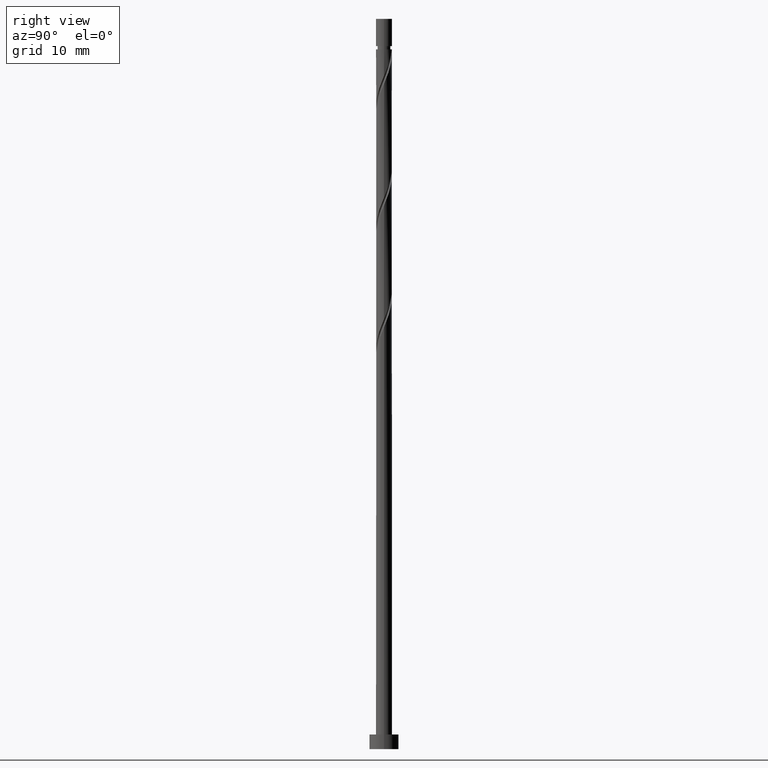
[diagram: clean part render]
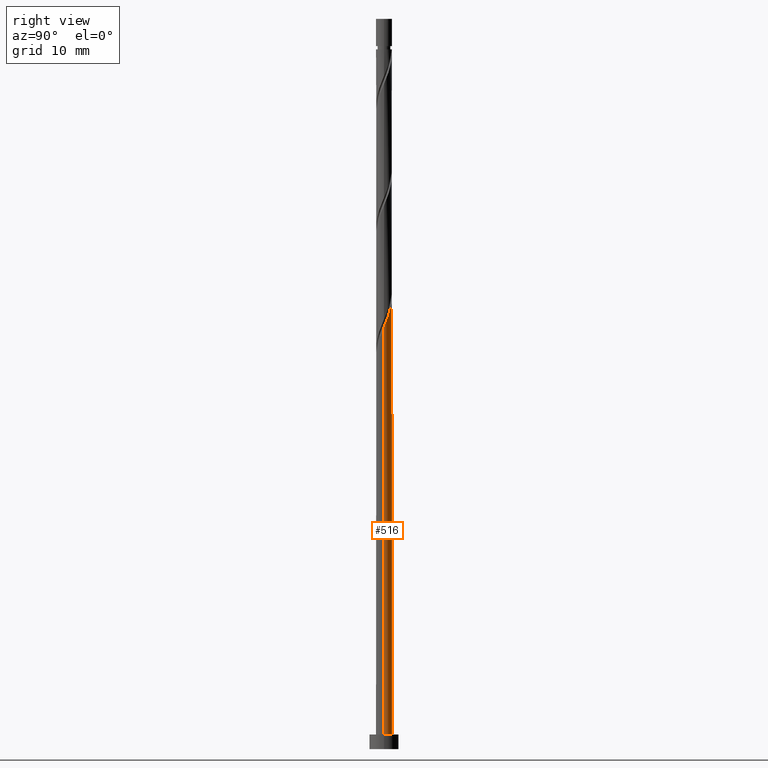
[diagram: same view with one face highlighted and labeled with its STEP entity id]
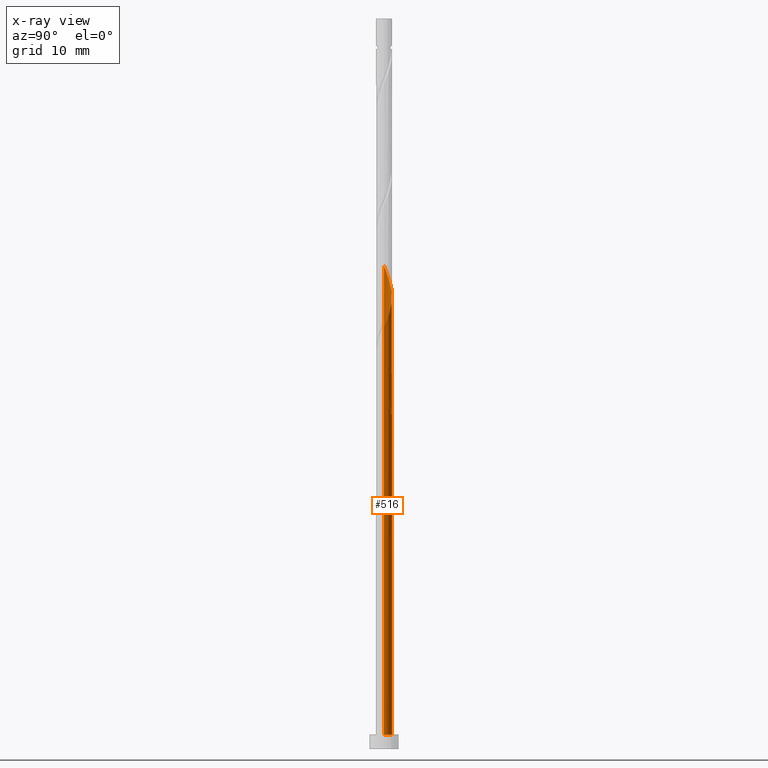
[diagram: x-ray of the same camera — body ghosted, the highlighted face saturated]
A machine part, right view. The second image highlights one B-rep face of the part: STEP entity #516.
The next image is the same camera in x-ray: the body ghosted, the highlighted face saturated — about 0% of this face is hidden behind the body in this view.
In plain terms, the highlighted cylindrical surface (edge-blend (fillet) strip) has radius 1.1 mm, axis along (-0, -0, -1).
Its self-contained STEP definition (entity closure, byte-faithful):
#25 = CARTESIAN_POINT ( 'NONE',  ( 1.100000000000001643, -7.245398775243440088E-16, 57.78930650279280457 ) ) ;
#46 = CARTESIAN_POINT ( 'NONE',  ( 0.6956601188265308933, 0.8738863519167893168, 60.17201324296676290 ) ) ;
#52 = EDGE_CURVE ( 'NONE', #1416, #1311, #73, .T. ) ;
#59 = EDGE_CURVE ( 'NONE', #1180, #1101, #1064, .T. ) ;
#65 = DIRECTION ( 'NONE',  ( -0.000000000000000000, -0.000000000000000000, -1.000000000000000000 ) ) ;
#73 = LINE ( 'NONE', #871, #1046 ) ;
#84 = ORIENTED_EDGE ( 'NONE', *, *, #52, .F. ) ;
#91 = DIRECTION ( 'NONE',  ( -0.000000000000000000, -0.000000000000000000, -1.000000000000000000 ) ) ;
#95 = CARTESIAN_POINT ( 'NONE',  ( -0.5252400318649718125, 0.9665003408827577136, 47.67201324296674159 ) ) ;
#111 = CARTESIAN_POINT ( 'NONE',  ( 1.100000000000000089, 1.347111479062088503E-16, 2.000000000000000000 ) ) ;
#113 = FACE_OUTER_BOUND ( 'NONE', #322, .T. ) ;
#119 = EDGE_CURVE ( 'NONE', #628, #1416, #1285, .T. ) ;
#152 = EDGE_CURVE ( 'NONE', #628, #900, #1069, .T. ) ;
#165 = VECTOR ( 'NONE', #329, 1000.000000000000000 ) ;
#167 = EDGE_CURVE ( 'NONE', #1077, #1311, #582, .T. ) ;
#176 = CARTESIAN_POINT ( 'NONE',  ( 1.099633863903274111, 0.02837895976176521215, 57.85719842815194625 ) ) ;
#178 = ORIENTED_EDGE ( 'NONE', *, *, #119, .F. ) ;
#180 = CARTESIAN_POINT ( 'NONE',  ( 0.5252400318649721456, 0.9665003408827576026, 60.63497620592971060 ) ) ;
#200 = CARTESIAN_POINT ( 'NONE',  ( -1.100000000000002309, 3.482310449497200798E-13, 50.51768294610282339 ) ) ;
#208 = DIRECTION ( 'NONE',  ( -1.000000000000000000, 0.000000000000000000, 0.000000000000000000 ) ) ;
#211 = CARTESIAN_POINT ( 'NONE',  ( -1.100000000000000089, 0.000000000000000000, 100.0000000000000000 ) ) ;
#213 = CARTESIAN_POINT ( 'NONE',  ( -0.3548199449034129538, 1.059114329848726666, 47.20905028000379389 ) ) ;
#228 = CARTESIAN_POINT ( 'NONE',  ( 0.000000000000000000, 0.000000000000000000, 100.0000000000000000 ) ) ;
#278 = CARTESIAN_POINT ( 'NONE',  ( 1.094629887612834862, 0.2222740788686123903, 58.32016139111491526 ) ) ;
#283 = CARTESIAN_POINT ( 'NONE',  ( -0.2188972361634563824, 1.078000000000001624, 62.48682805778157956 ) ) ;
#287 = CARTESIAN_POINT ( 'NONE',  ( 0.9525934155692655780, 0.5832547827547219788, 59.24608731704083198 ) ) ;
#292 = CARTESIAN_POINT ( 'NONE',  ( -1.043024003361354479, 0.3494294326642456427, 65.26460583555935102 ) ) ;
#309 = CARTESIAN_POINT ( 'NONE',  ( -1.043024003361354479, 0.3494294326642456427, 48.59793916889268672 ) ) ;
#316 = CARTESIAN_POINT ( 'NONE',  ( -1.100000000000002309, 3.482310449497200798E-13, 50.51768294610282339 ) ) ;
#318 = CARTESIAN_POINT ( 'NONE',  ( -0.2188972361634564379, 1.078000000000001402, 45.82016139111490105 ) ) ;
#322 = EDGE_LOOP ( 'NONE', ( #1430, #1366, #1112, #84, #178, #967, #421, #738 ) ) ;
#325 = CARTESIAN_POINT ( 'NONE',  ( -1.023611651591050054, 0.4027644308116675731, 49.52386509481858212 ) ) ;
#329 = DIRECTION ( 'NONE',  ( -0.000000000000000000, -0.000000000000000000, -1.000000000000000000 ) ) ;
#351 = CYLINDRICAL_SURFACE ( 'NONE', #1003, 1.100000000000000089 ) ;
#395 = CARTESIAN_POINT ( 'NONE',  ( 0.1630015969718417168, 1.087855909293428569, 61.56090213185563442 ) ) ;
#418 = CARTESIAN_POINT ( 'NONE',  ( -0.02881675095973110223, 1.116597488738132027, 62.02386509481861054 ) ) ;
#420 = AXIS2_PLACEMENT_3D ( 'NONE', #1020, #917, #906 ) ;
#421 = ORIENTED_EDGE ( 'NONE', *, *, #464, .F. ) ;
#423 = CARTESIAN_POINT ( 'NONE',  ( -0.1630015969718409952, 1.087855909293429457, 46.74608731704081777 ) ) ;
#432 = CARTESIAN_POINT ( 'NONE',  ( -0.9814101665289961529, 0.5333427059834092709, 48.13497620592972481 ) ) ;
#447 = CARTESIAN_POINT ( 'NONE',  ( -1.100000000000001643, 0.1793598090025021463, 49.02605365709386120 ) ) ;
#464 = EDGE_CURVE ( 'NONE', #973, #900, #555, .T. ) ;
#510 = CARTESIAN_POINT ( 'NONE',  ( 1.100000000000001421, 0.01419184176522167960, 57.82332387672514784 ) ) ;
#516 = ADVANCED_FACE ( 'NONE', ( #113 ), #351, .T. ) ;
#536 = CARTESIAN_POINT ( 'NONE',  ( -1.094629887612834862, 0.2222740788686127511, 49.98682805778156535 ) ) ;
#551 = CARTESIAN_POINT ( 'NONE',  ( 0.02881675095973112652, 1.116597488738132249, 46.28312435407786296 ) ) ;
#555 =( BOUNDED_CURVE ( )  B_SPLINE_CURVE ( 2, ( #316, #659, #1445, #536, #325, #1124, #786, #997, #95, #213, #423, #551, #1018 ),
 .UNSPECIFIED., .F., .T. ) 
 B_SPLINE_CURVE_WITH_KNOTS ( ( 3, 2, 2, 2, 2, 2, 3 ),
 ( 0.9295248053855417192, 0.9305555555555555802, 0.9444444444444444198, 0.9583333333333333703, 0.9722222222222222099, 0.9861111111111111605, 1.000000000000000000 ),
 .UNSPECIFIED. ) 
 CURVE ( )  GEOMETRIC_REPRESENTATION_ITEM ( )  RATIONAL_B_SPLINE_CURVE ( ( 0.9071930855141490113, 0.9080659294509878521, 0.9090909090909153889, 0.8952797754656497409, 0.9090909090909153889, 0.8952797754656497409, 0.9090909090909153889, 0.8952797754656497409, 0.9090909090909153889, 0.8952797754656497409, 0.9090909090909153889, 0.8952797754656497409, 0.9090909090909153889 ) ) 
 REPRESENTATION_ITEM ( '' )  );
#582 = CIRCLE ( 'NONE', #420, 1.100000000000000089 ) ;
#628 = VERTEX_POINT ( 'NONE', #1022 ) ;
#631 = EDGE_CURVE ( 'NONE', #1180, #1077, #1374, .T. ) ;
#634 = VECTOR ( 'NONE', #91, 1000.000000000000000 ) ;
#645 = CARTESIAN_POINT ( 'NONE',  ( -1.100000000000001643, 7.021314277040034450E-16, 49.45597316945947597 ) ) ;
#659 = CARTESIAN_POINT ( 'NONE',  ( -1.099999999999997424, 0.01419184176539728393, 50.48366557217087802 ) ) ;
#674 = CARTESIAN_POINT ( 'NONE',  ( -1.100000000000000089, 0.000000000000000000, 2.000000000000000000 ) ) ;
#738 = ORIENTED_EDGE ( 'NONE', *, *, #747, .F. ) ;
#747 = EDGE_CURVE ( 'NONE', #1101, #973, #1341, .T. ) ;
#751 = CARTESIAN_POINT ( 'NONE',  ( -0.8606100546192090306, 0.6850914784817612180, 64.33867990963341299 ) ) ;
#786 = CARTESIAN_POINT ( 'NONE',  ( -0.8241267671978979026, 0.7285705673357560919, 48.59793916889266541 ) ) ;
#807 = DIRECTION ( 'NONE',  ( -1.000000000000000000, 0.000000000000000000, 0.000000000000000000 ) ) ;
#815 = DIRECTION ( 'NONE',  ( -0.000000000000000000, -0.000000000000000000, -1.000000000000000000 ) ) ;
#871 = CARTESIAN_POINT ( 'NONE',  ( -1.100000000000000089, 0.000000000000000000, 100.0000000000000000 ) ) ;
#900 = VERTEX_POINT ( 'NONE', #1421 ) ;
#906 = DIRECTION ( 'NONE',  ( 1.000000000000000000, 0.000000000000000000, 0.000000000000000000 ) ) ;
#917 = DIRECTION ( 'NONE',  ( 0.000000000000000000, 0.000000000000000000, 1.000000000000000000 ) ) ;
#967 = ORIENTED_EDGE ( 'NONE', *, *, #152, .T. ) ;
#973 = VERTEX_POINT ( 'NONE', #200 ) ;
#997 = CARTESIAN_POINT ( 'NONE',  ( -0.6956601188265307822, 0.8738863519167894278, 48.13497620592971060 ) ) ;
#1000 = CARTESIAN_POINT ( 'NONE',  ( -1.100000000000000977, 0.1793598090025042280, 65.69272032376052550 ) ) ;
#1002 = CARTESIAN_POINT ( 'NONE',  ( -1.100000000000001643, 7.021314277040034450E-16, 66.12263983612612606 ) ) ;
#1003 = AXIS2_PLACEMENT_3D ( 'NONE', #228, #815, #807 ) ;
#1012 = CARTESIAN_POINT ( 'NONE',  ( 0.000000000000000000, 0.000000000000000000, 45.82016139111490105 ) ) ;
#1018 = CARTESIAN_POINT ( 'NONE',  ( 0.2188972361634569097, 1.078000000000001402, 45.82016139111490816 ) ) ;
#1020 = CARTESIAN_POINT ( 'NONE',  ( 0.000000000000000000, 0.000000000000000000, 2.000000000000000000 ) ) ;
#1022 = CARTESIAN_POINT ( 'NONE',  ( -0.2188972361634564379, 1.078000000000001402, 45.82016139111490105 ) ) ;
#1046 = VECTOR ( 'NONE', #65, 1000.000000000000000 ) ;
#1064 =( BOUNDED_CURVE ( )  B_SPLINE_CURVE ( 2, ( #1323, #510, #176, #278, #1087, #287, #1080, #46, #180, #1419, #395, #418, #283, #1330, #1424, #1316, #751, #1211, #292, #1000, #1251 ),
 .UNSPECIFIED., .F., .T. ) 
 B_SPLINE_CURVE_WITH_KNOTS ( ( 3, 2, 2, 2, 2, 2, 2, 2, 2, 2, 3 ),
 ( 0.1795248053855289794, 0.1805555555555555802, 0.1944444444444444198, 0.2083333333333333703, 0.2222222222222222099, 0.2361111111111111605, 0.2500000000000000000, 0.2638888888888888395, 0.2777777777777777901, 0.2916666666666666297, 0.3045248053855289516 ),
 .UNSPECIFIED. ) 
 CURVE ( )  GEOMETRIC_REPRESENTATION_ITEM ( )  RATIONAL_B_SPLINE_CURVE ( ( 0.9071930855141265848, 0.9080659294509743074, 0.9090909090909143897, 0.8952797754656487417, 0.9090909090909143897, 0.8952797754656487417, 0.9090909090909143897, 0.8952797754656487417, 0.9090909090909143897, 0.8952797754656487417, 0.9090909090909143897, 0.8952797754656487417, 0.9090909090909143897, 0.8952797754656487417, 0.9090909090909143897, 0.8952797754656487417, 0.9090909090909143897, 0.8952797754656487417, 0.9090909090909143897, 0.8963047551055889350, 0.9071930855141264738 ) ) 
 REPRESENTATION_ITEM ( '' )  );
#1069 = CIRCLE ( 'NONE', #1354, 1.100000000000000089 ) ;
#1077 = VERTEX_POINT ( 'NONE', #111 ) ;
#1080 = CARTESIAN_POINT ( 'NONE',  ( 0.8241267671978977916, 0.7285705673357560919, 59.70905028000379389 ) ) ;
#1087 = CARTESIAN_POINT ( 'NONE',  ( 1.023611651591049831, 0.4027644308116671845, 58.78312435407787007 ) ) ;
#1101 = VERTEX_POINT ( 'NONE', #1002 ) ;
#1108 = CARTESIAN_POINT ( 'NONE',  ( -0.4089777213671821343, 1.039402511261871442, 46.28312435407785586 ) ) ;
#1112 = ORIENTED_EDGE ( 'NONE', *, *, #167, .T. ) ;
#1117 = CARTESIAN_POINT ( 'NONE',  ( -0.7398099427094217972, 0.8368402509801139422, 47.20905028000380099 ) ) ;
#1121 = CARTESIAN_POINT ( 'NONE',  ( 1.100000000000000089, 1.347111479062088503E-16, 100.0000000000000000 ) ) ;
#1124 = CARTESIAN_POINT ( 'NONE',  ( -0.9525934155692653560, 0.5832547827547228669, 49.06090213185564153 ) ) ;
#1142 = DIRECTION ( 'NONE',  ( 0.000000000000000000, -0.000000000000000000, -1.000000000000000000 ) ) ;
#1180 = VERTEX_POINT ( 'NONE', #25 ) ;
#1195 = CARTESIAN_POINT ( 'NONE',  ( -1.100000000000001643, 7.021314277040034450E-16, 49.45597316945947597 ) ) ;
#1211 = CARTESIAN_POINT ( 'NONE',  ( -0.9814101665289961529, 0.5333427059834092709, 64.80164287259638911 ) ) ;
#1244 = CARTESIAN_POINT ( 'NONE',  ( -0.8606100546192090306, 0.6850914784817612180, 47.67201324296674159 ) ) ;
#1251 = CARTESIAN_POINT ( 'NONE',  ( -1.100000000000001643, 7.021314277040035436E-16, 66.12263983612612606 ) ) ;
#1285 =( BOUNDED_CURVE ( )  B_SPLINE_CURVE ( 2, ( #318, #1108, #1474, #1117, #1244, #432, #309, #447, #645 ),
 .UNSPECIFIED., .F., .T. ) 
 B_SPLINE_CURVE_WITH_KNOTS ( ( 3, 2, 2, 2, 3 ),
 ( 0.000000000000000000, 0.01388888888888883955, 0.02777777777777779358, 0.04166666666666662966, 0.05452480538552911121 ),
 .UNSPECIFIED. ) 
 CURVE ( )  GEOMETRIC_REPRESENTATION_ITEM ( )  RATIONAL_B_SPLINE_CURVE ( ( 0.9090909090909143897, 0.8952797754656487417, 0.9090909090909143897, 0.8952797754656487417, 0.9090909090909143897, 0.8952797754656487417, 0.9090909090909143897, 0.8963047551055888240, 0.9071930855141266958 ) ) 
 REPRESENTATION_ITEM ( '' )  );
#1311 = VERTEX_POINT ( 'NONE', #674 ) ;
#1316 = CARTESIAN_POINT ( 'NONE',  ( -0.7398099427094217972, 0.8368402509801139422, 63.87571694667046529 ) ) ;
#1323 = CARTESIAN_POINT ( 'NONE',  ( 1.100000000000001643, -7.245398775243441074E-16, 57.78930650279280457 ) ) ;
#1330 = CARTESIAN_POINT ( 'NONE',  ( -0.4089777213671821343, 1.039402511261871442, 62.94979102074454858 ) ) ;
#1341 = LINE ( 'NONE', #211, #165 ) ;
#1354 = AXIS2_PLACEMENT_3D ( 'NONE', #1012, #1142, #208 ) ;
#1366 = ORIENTED_EDGE ( 'NONE', *, *, #631, .T. ) ;
#1374 = LINE ( 'NONE', #1121, #634 ) ;
#1416 = VERTEX_POINT ( 'NONE', #1195 ) ;
#1419 = CARTESIAN_POINT ( 'NONE',  ( 0.3548199449034136199, 1.059114329848726221, 61.09793916889268672 ) ) ;
#1421 = CARTESIAN_POINT ( 'NONE',  ( 0.2188972361634569097, 1.078000000000001402, 45.82016139111490105 ) ) ;
#1424 = CARTESIAN_POINT ( 'NONE',  ( -0.5743938320383020768, 0.9381213811209924147, 63.41275398370748917 ) ) ;
#1430 = ORIENTED_EDGE ( 'NONE', *, *, #59, .F. ) ;
#1445 = CARTESIAN_POINT ( 'NONE',  ( -1.099633863903273889, 0.02837895976176521909, 50.44979102074452726 ) ) ;
#1474 = CARTESIAN_POINT ( 'NONE',  ( -0.5743938320383020768, 0.9381213811209924147, 46.74608731704083198 ) ) ;